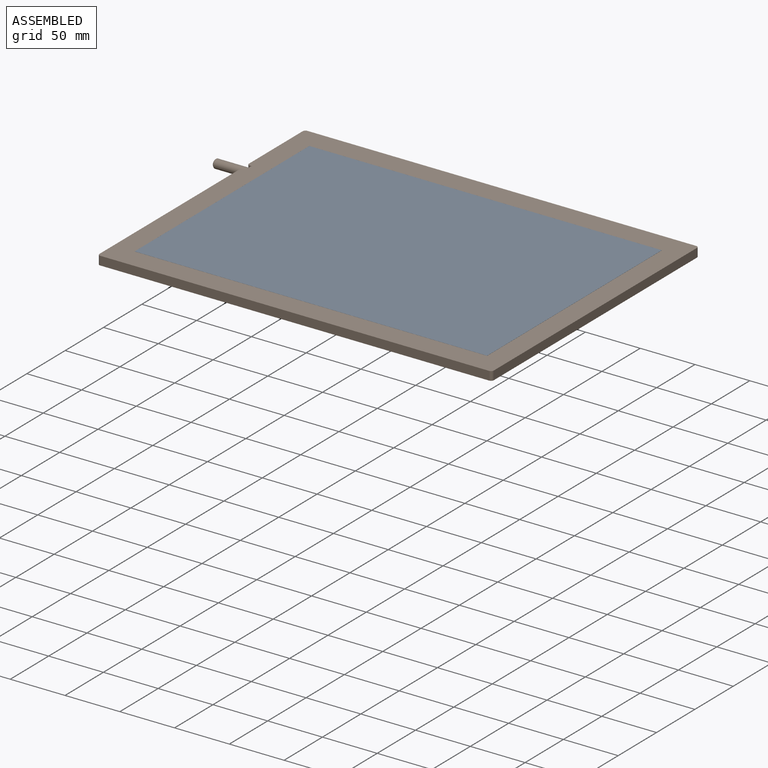
[diagram: assembled view]
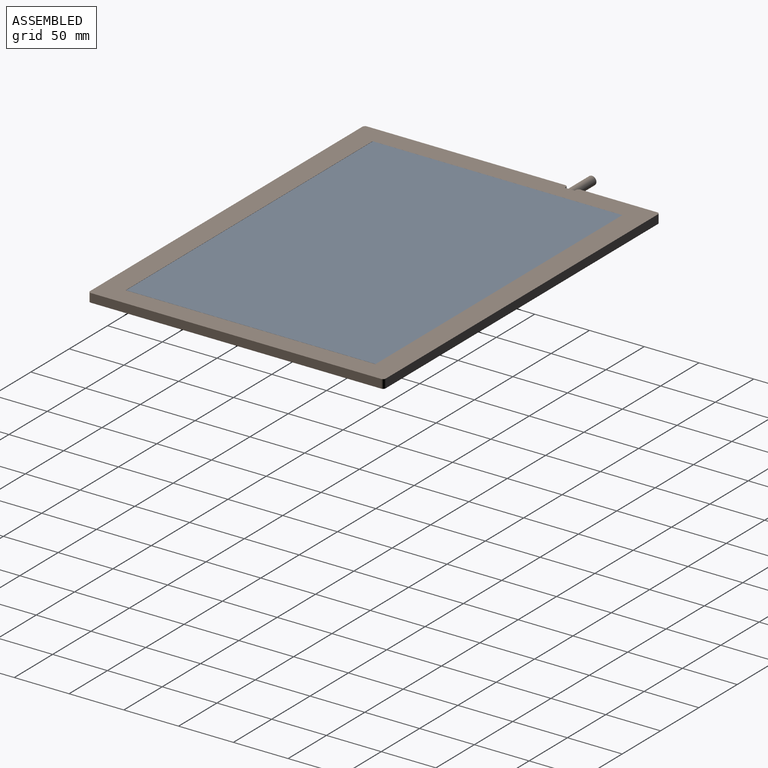
[diagram: assembled view, second angle]
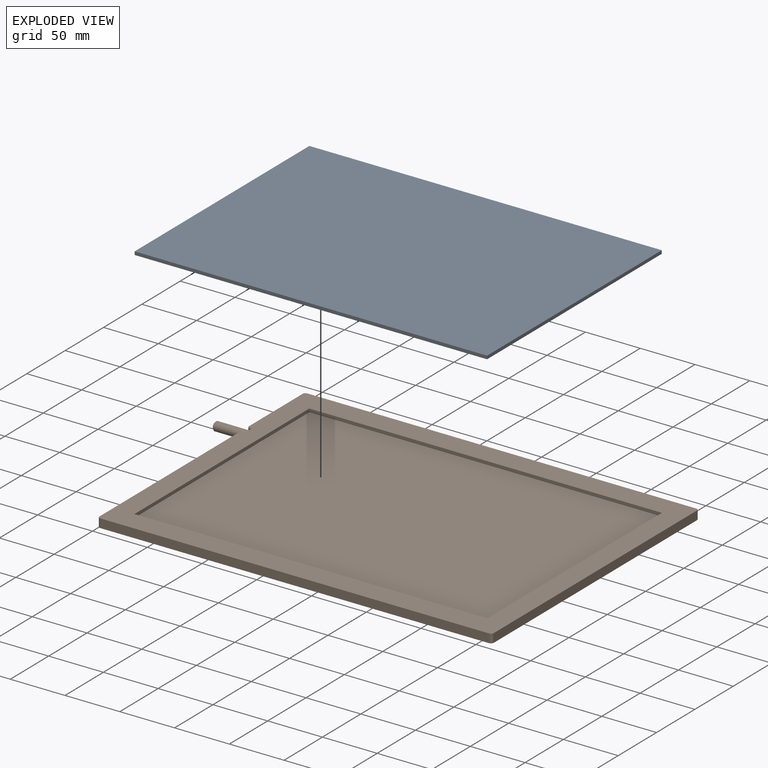
[diagram: exploded view]
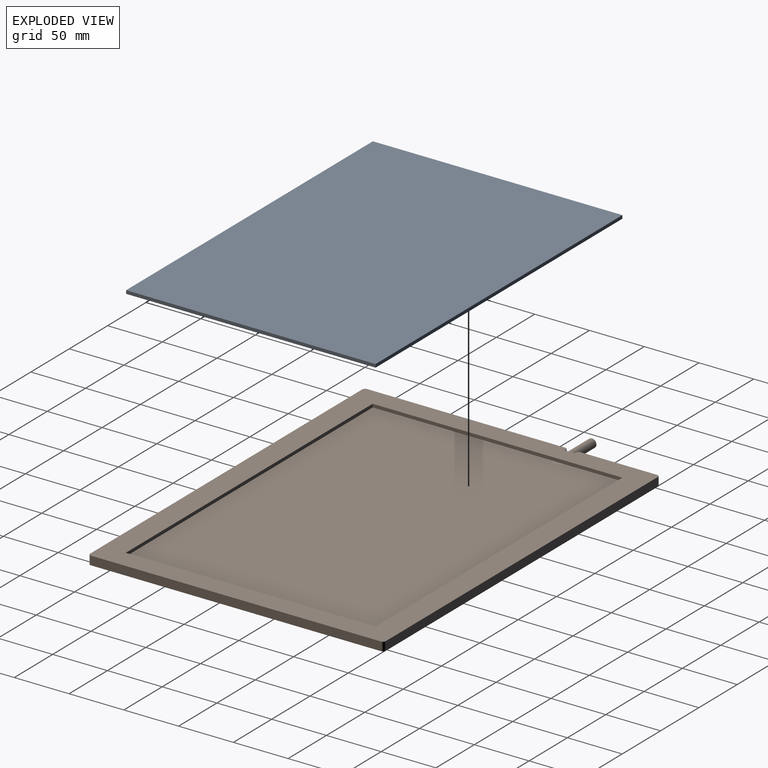
[diagram: exploded view, second angle]
ASSEMBLY  parts=2 mates=3
PART A: 6 faces, bbox 321.8x227.8x3 mm
  f0: plane 321.8x2.99mm, normal (0,1,0), area 962.2mm2, adj f1,f3,f4,f5
  f1: plane 227.8x2.99mm, normal (-1,0,0), area 681.1mm2, adj f0,f2,f4,f5
  f2: plane 321.8x2.99mm, normal (0,-1,0), area 962.2mm2, adj f1,f3,f4,f5
  f3: plane 227.8x2.99mm, normal (1,0,0), area 681.1mm2, adj f0,f2,f4,f5
  f4: plane 321.8x227.8mm, normal (0,0,-1), area 73306mm2, adj f0,f1,f2,f3
  f5: plane 321.8x227.8mm, normal (0,0,1), area 73306mm2, adj f0,f1,f2,f3
PART B: 33 faces, bbox 386x270x10 mm
  f0: plane 360x270mm, normal (0,0,1), area 23740mm2, adj f1,f2,f3,f4,f5,f6,f16,f17
  f1: plane 8x4.5mm, normal (-1,0,0), area 10.9mm2, adj f0,f7,f17,f25
  f2: plane 70x8mm, normal (-1,0,0), area 560mm2, adj f0,f7,f20,f21
  f3: plane 355x8mm, normal (0,1,0), area 2840mm2, adj f0,f7,f21,f24
  f4: plane 181x8mm, normal (-1,0,0), area 1448mm2, adj f0,f7,f19,f22
  f5: plane 355x8mm, normal (0,-1,0), area 2840mm2, adj f0,f7,f22,f23
  f6: plane 265x8mm, normal (1,0,0), area 2120mm2, adj f0,f7,f23,f24
  f7: plane 360x270mm, normal (0,0,-1), area 96248mm2, adj f1,f2,f3,f4,f5,f6,f8,f10
  f8: cylinder r=8.5mm len=17mm, axis (0,0,1), area 106.8mm2, adj f7,f9
  f9: plane 17x17mm, normal (0,0,-1), area 227mm2, adj f8
  f10: cylinder r=8.5mm len=17mm, axis (0,0,1), area 106.8mm2, adj f7,f11
  f11: plane 17x17mm, normal (0,0,-1), area 227mm2, adj f10
  f12: cylinder r=8.5mm len=17mm, axis (0,0,1), area 106.8mm2, adj f7,f13
  f13: plane 17x17mm, normal (0,0,-1), area 227mm2, adj f12
  f14: cylinder r=8.5mm len=17mm, axis (0,0,1), area 106.8mm2, adj f7,f15
  f15: plane 17x17mm, normal (0,0,-1), area 227mm2, adj f14
  f16: plane 8x1.5mm, normal (0,1,0), area 12mm2, adj f0,f7,f18,f19
  f17: plane 8x1.5mm, normal (0,-1,0), area 12mm2, adj f0,f1,f7,f20
  f18: plane 8x4.5mm, normal (-1,0,0), area 10.9mm2, adj f0,f7,f16,f25
  f19: cylinder r=2.5mm len=8mm, axis (0,0,1), area 31.4mm2, adj f0,f4,f7,f16
  f20: cylinder r=2.5mm len=8mm, axis (0,0,-1), area 31.4mm2, adj f0,f2,f7,f17
  f21: cylinder r=2.5mm len=8mm, axis (0,0,1), area 31.4mm2, adj f0,f2,f3,f7
  f22: cylinder r=2.5mm len=8mm, axis (0,0,-1), area 31.4mm2, adj f0,f4,f5,f7
  f23: cylinder r=2.5mm len=8mm, axis (0,0,1), area 31.4mm2, adj f0,f5,f6,f7
  f24: cylinder r=2.5mm len=8mm, axis (0,0,-1), area 31.4mm2, adj f0,f3,f6,f7
  f25: cylinder r=4mm len=29mm, axis (1,0,0), area 728.8mm2, adj f1,f18,f27
  f26: plane 6.01x6.01mm, normal (-1,0,0), area 28.2mm2, adj f27
  f27: bspline ~8x7.99mm, area 31.8mm2, adj f25,f26
  f28: plane 322x3mm, normal (0,-1,0), area 966mm2, adj f0,f29,f31,f32
  f29: plane 228x3mm, normal (1,0,0), area 684mm2, adj f0,f28,f30,f32
  f30: plane 322x3mm, normal (0,1,0), area 966mm2, adj f0,f29,f31,f32
  f31: plane 228x3mm, normal (-1,0,0), area 684mm2, adj f0,f28,f30,f32
  f32: plane 322x228mm, normal (0,0,1), area 73416mm2, adj f28,f29,f30,f31
PLACE A t=(-139.65,11.83,-77.78)mm
PLACE B t=(-139.55,11.73,-77.77)mm
MATE planar A.f4 <-> B.f32  axis (0,0,-1) through (40.35,-123.17,-72.77)mm
MATE planar A.f1 <-> B.f29  axis (-1,0,0) through (-120.55,-123.17,-71.27)mm
MATE planar B.f28 <-> A.f0  axis (0,-1,0) through (40.45,-9.27,-71.27)mm
